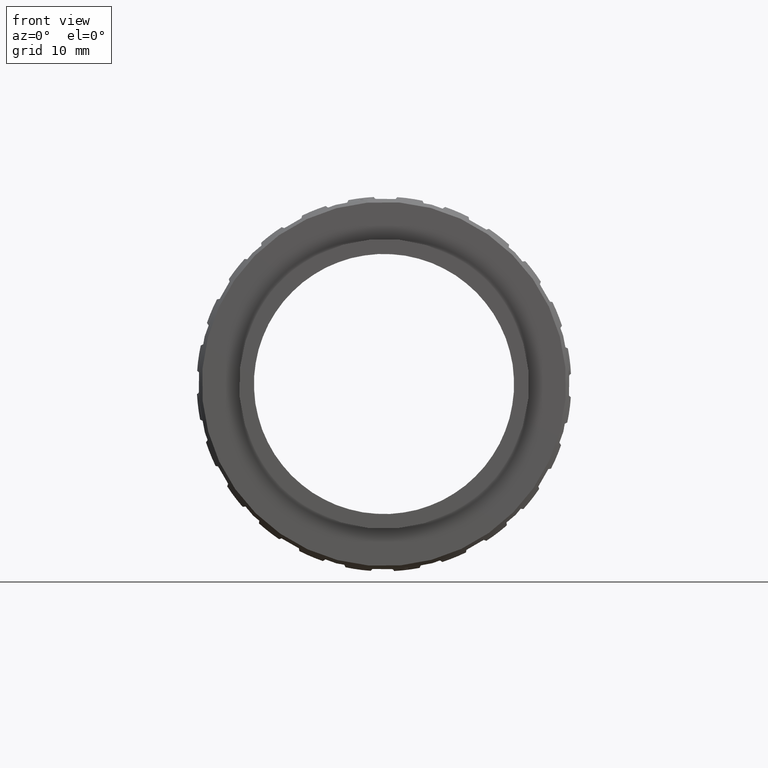
[diagram: clean part render]
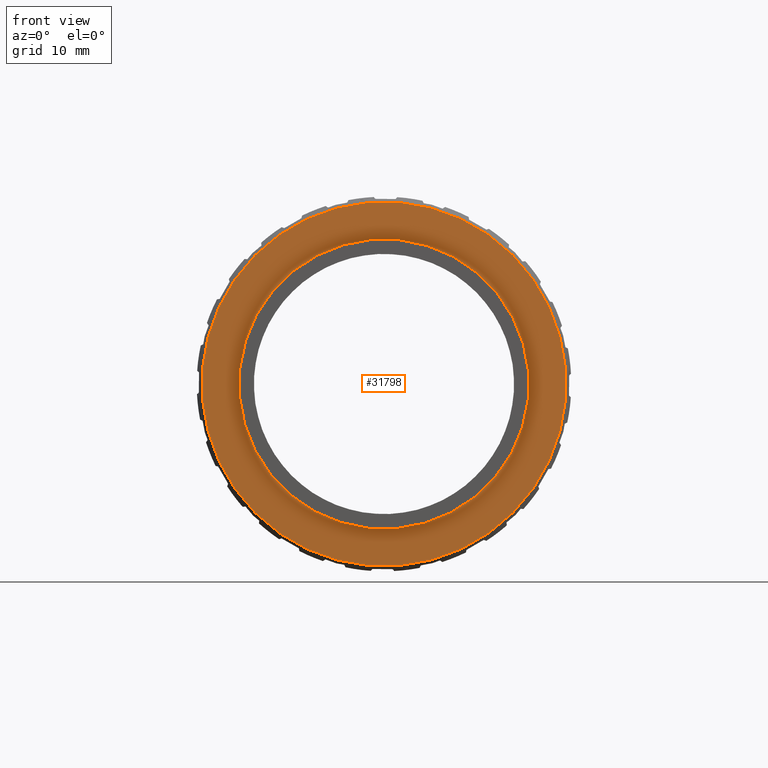
[diagram: same view with one face highlighted and labeled with its STEP entity id]
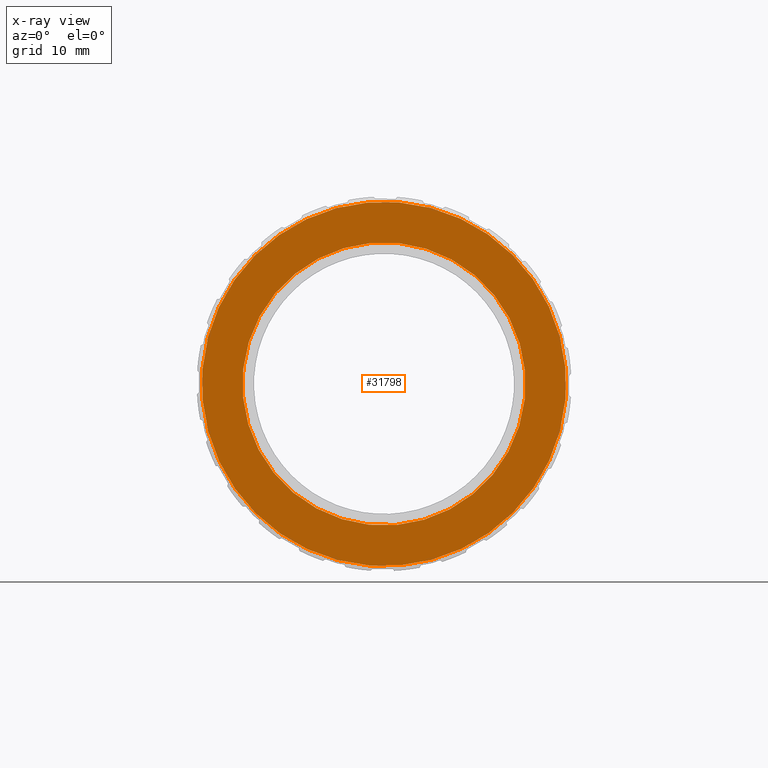
[diagram: x-ray of the same camera — body ghosted, the highlighted face saturated]
A machine part, front view. The second image highlights one B-rep face of the part: STEP entity #31798.
The next image is the same camera in x-ray: the body ghosted, the highlighted face saturated — about 0% of this face is hidden behind the body in this view.
In plain terms, the highlighted planar face has unit normal (-0, 1, -0).
Its self-contained STEP definition (entity closure, byte-faithful):
#2916 = EDGE_CURVE ( 'NONE', #79590, #85390, #12759, .T. ) ;
#6838 = CARTESIAN_POINT ( 'NONE',  ( 2.522772406243548200E-015, -9.799999999999995400, -20.60000000000000900 ) ) ;
#7023 = VERTEX_POINT ( 'NONE', #9319 ) ;
#9319 = CARTESIAN_POINT ( 'NONE',  ( 0.0000000000000000000, -9.799999999999995400, 20.60000000000000900 ) ) ;
#11419 = DIRECTION ( 'NONE',  ( 0.0000000000000000000, -1.000000000000000000, 0.0000000000000000000 ) ) ;
#12550 = CARTESIAN_POINT ( 'NONE',  ( 0.0000000000000000000, -9.799999999999995400, 0.0000000000000000000 ) ) ;
#12759 = CIRCLE ( 'NONE', #40300, 26.50000000000000400 ) ;
#13663 = ORIENTED_EDGE ( 'NONE', *, *, #80125, .T. ) ;
#16586 = CARTESIAN_POINT ( 'NONE',  ( 0.0000000000000000000, -9.799999999999995400, 0.0000000000000000000 ) ) ;
#17179 = DIRECTION ( 'NONE',  ( 0.0000000000000000000, 0.0000000000000000000, 1.000000000000000000 ) ) ;
#19562 = DIRECTION ( 'NONE',  ( 0.0000000000000000000, 0.0000000000000000000, 1.000000000000000000 ) ) ;
#19778 = EDGE_LOOP ( 'NONE', ( #48154, #13663 ) ) ;
#22642 = EDGE_LOOP ( 'NONE', ( #81004, #28464 ) ) ;
#23320 = PLANE ( 'NONE',  #24480 ) ;
#23723 = AXIS2_PLACEMENT_3D ( 'NONE', #16586, #69949, #17179 ) ;
#24480 = AXIS2_PLACEMENT_3D ( 'NONE', #69975, #51251, #44285 ) ;
#25399 = DIRECTION ( 'NONE',  ( -0.0000000000000000000, 1.000000000000000000, -0.0000000000000000000 ) ) ;
#28251 = CARTESIAN_POINT ( 'NONE',  ( 3.275930187719170300E-015, -9.799999999999995400, -26.50000000000000400 ) ) ;
#28464 = ORIENTED_EDGE ( 'NONE', *, *, #62365, .T. ) ;
#31485 = CIRCLE ( 'NONE', #23723, 26.50000000000000400 ) ;
#31785 = DIRECTION ( 'NONE',  ( 0.0000000000000000000, 0.0000000000000000000, 1.000000000000000000 ) ) ;
#31798 = ADVANCED_FACE ( 'NONE', ( #69738, #78078 ), #23320, .F. ) ;
#40300 = AXIS2_PLACEMENT_3D ( 'NONE', #65341, #11419, #31785 ) ;
#40370 = EDGE_CURVE ( 'NONE', #7023, #49463, #70207, .T. ) ;
#41995 = CARTESIAN_POINT ( 'NONE',  ( 0.0000000000000000000, -9.799999999999995400, 26.50000000000000400 ) ) ;
#44285 = DIRECTION ( 'NONE',  ( 0.0000000000000000000, 0.0000000000000000000, 1.000000000000000000 ) ) ;
#48154 = ORIENTED_EDGE ( 'NONE', *, *, #40370, .T. ) ;
#49463 = VERTEX_POINT ( 'NONE', #6838 ) ;
#49983 = DIRECTION ( 'NONE',  ( -0.0000000000000000000, 1.000000000000000000, -0.0000000000000000000 ) ) ;
#51251 = DIRECTION ( 'NONE',  ( -0.0000000000000000000, 1.000000000000000000, 0.0000000000000000000 ) ) ;
#62365 = EDGE_CURVE ( 'NONE', #85390, #79590, #31485, .T. ) ;
#65341 = CARTESIAN_POINT ( 'NONE',  ( 0.0000000000000000000, -9.799999999999995400, 0.0000000000000000000 ) ) ;
#65976 = AXIS2_PLACEMENT_3D ( 'NONE', #12550, #25399, #19562 ) ;
#69738 = FACE_OUTER_BOUND ( 'NONE', #22642, .T. ) ;
#69949 = DIRECTION ( 'NONE',  ( 0.0000000000000000000, -1.000000000000000000, 0.0000000000000000000 ) ) ;
#69975 = CARTESIAN_POINT ( 'NONE',  ( 27.00000000000000400, -9.799999999999995400, 0.0000000000000000000 ) ) ;
#70207 = CIRCLE ( 'NONE', #65976, 20.60000000000000900 ) ;
#76532 = CARTESIAN_POINT ( 'NONE',  ( 0.0000000000000000000, -9.799999999999995400, 0.0000000000000000000 ) ) ;
#78078 = FACE_BOUND ( 'NONE', #19778, .T. ) ;
#79360 = AXIS2_PLACEMENT_3D ( 'NONE', #76532, #49983, #82942 ) ;
#79590 = VERTEX_POINT ( 'NONE', #41995 ) ;
#80125 = EDGE_CURVE ( 'NONE', #49463, #7023, #86455, .T. ) ;
#81004 = ORIENTED_EDGE ( 'NONE', *, *, #2916, .T. ) ;
#82942 = DIRECTION ( 'NONE',  ( 0.0000000000000000000, 0.0000000000000000000, 1.000000000000000000 ) ) ;
#85390 = VERTEX_POINT ( 'NONE', #28251 ) ;
#86455 = CIRCLE ( 'NONE', #79360, 20.60000000000000900 ) ;